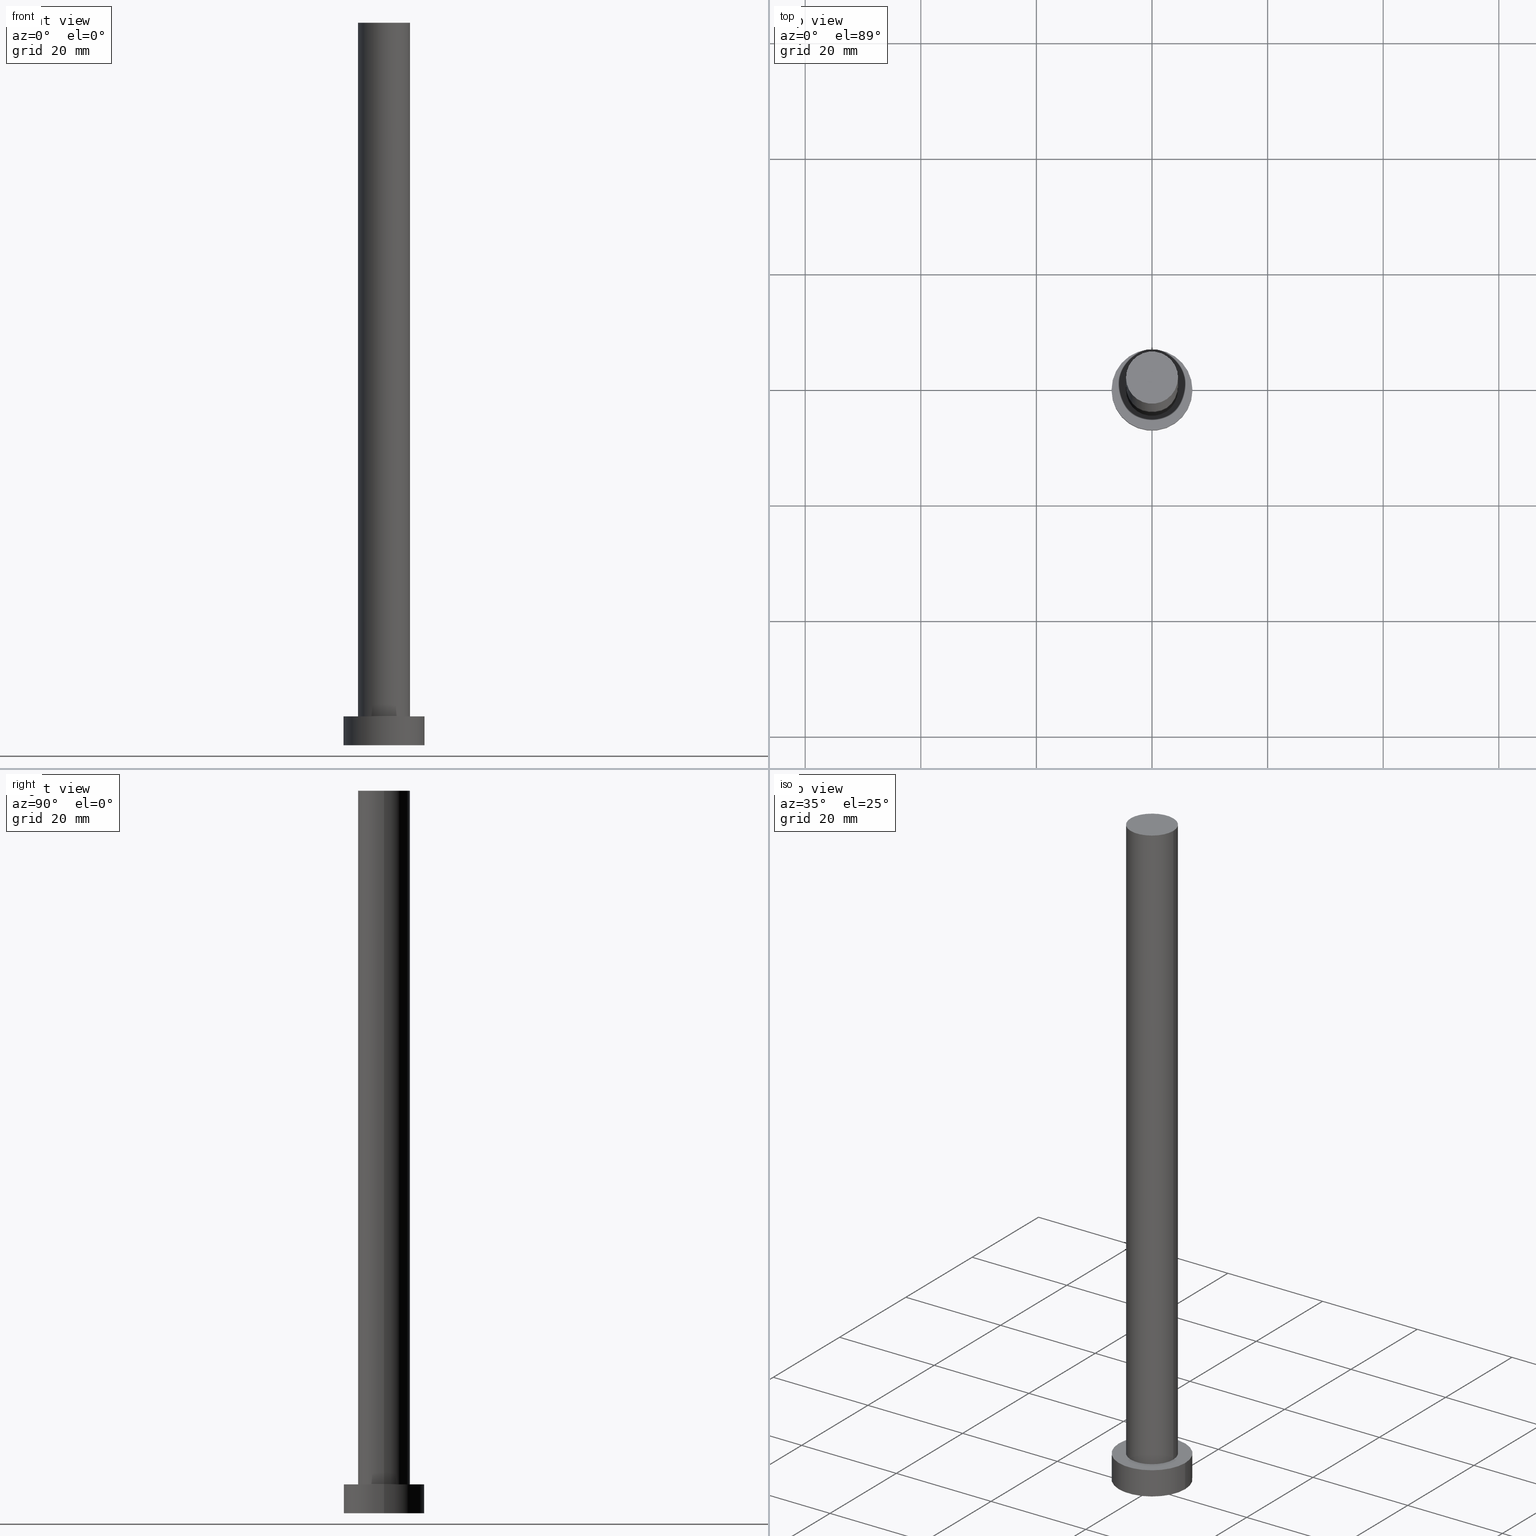
[diagram: canonical four-view strip — front | top / right | iso, engineering-drawing reading convention]
A machine part, canonical four-view strip (front | top / right | iso — engineering-drawing reading convention). The complete STEP part file that produces these views, byte-faithful:
ISO-10303-21;
HEADER;
FILE_DESCRIPTION (( 'STEP AP203' ),
    '1' );
FILE_NAME ('ce7a.STEP',
    '2023-02-13T10:51:18',
    ( '' ),
    ( '' ),
    'SwSTEP 2.0',
    'SolidWorks 2019',
    '' );
FILE_SCHEMA (( 'CONFIG_CONTROL_DESIGN' ));
ENDSEC;

DATA;
#1 = AXIS2_PLACEMENT_3D ( 'NONE', #152, #16, #151 ) ;
#2 = DIRECTION ( 'NONE',  ( -1.000000000000000000, 0.000000000000000000, 0.000000000000000000 ) ) ;
#3 = AXIS2_PLACEMENT_3D ( 'NONE', #54, #109, #191 ) ;
#4 = DIRECTION ( 'NONE',  ( 0.000000000000000000, 0.000000000000000000, 1.000000000000000000 ) ) ;
#5 = DIRECTION ( 'NONE',  ( -0.000000000000000000, -0.000000000000000000, -1.000000000000000000 ) ) ;
#6 = EDGE_CURVE ( 'NONE', #207, #101, #126, .T. ) ;
#7 = CARTESIAN_POINT ( 'NONE',  ( -4.500000000000000888, 0.000000000000000000, 125.0000000000000000 ) ) ;
#8 = AXIS2_PLACEMENT_3D ( 'NONE', #167, #253, #170 ) ;
#9 = PERSON_AND_ORGANIZATION_ROLE ( 'design_owner' ) ;
#10 = PERSON_AND_ORGANIZATION_ROLE ( 'design_supplier' ) ;
#11 = AXIS2_PLACEMENT_3D ( 'NONE', #107, #135, #28 ) ;
#12 = ORIENTED_EDGE ( 'NONE', *, *, #113, .F. ) ;
#13 = COORDINATED_UNIVERSAL_TIME_OFFSET ( 1, 0, .AHEAD. ) ;
#14 = FACE_OUTER_BOUND ( 'NONE', #29, .T. ) ;
#15 = CARTESIAN_POINT ( 'NONE',  ( -4.500000000000000888, 0.000000000000000000, 125.0000000000000000 ) ) ;
#16 = DIRECTION ( 'NONE',  ( 0.000000000000000000, 0.000000000000000000, 1.000000000000000000 ) ) ;
#17 = APPROVAL_PERSON_ORGANIZATION ( #244, #147, #136 ) ;
#18 = DIRECTION ( 'NONE',  ( 1.000000000000000000, 0.000000000000000000, -0.000000000000000000 ) ) ;
#19 = CIRCLE ( 'NONE', #98, 7.000000000000000000 ) ;
#20 = CARTESIAN_POINT ( 'NONE',  ( 4.500000000000000888, 5.510910596163089556E-16, 5.000000000000000000 ) ) ;
#21 = DIRECTION ( 'NONE',  ( 0.000000000000000000, 0.000000000000000000, 1.000000000000000000 ) ) ;
#22 = ORIENTED_EDGE ( 'NONE', *, *, #91, .T. ) ;
#23 = LOCAL_TIME ( 11, 51, 18.00000000000000000, #123 ) ;
#24 = DIRECTION ( 'NONE',  ( 0.000000000000000000, 0.000000000000000000, 1.000000000000000000 ) ) ;
#25 = PERSON_AND_ORGANIZATION ( #128, #75 ) ;
#26 = CC_DESIGN_PERSON_AND_ORGANIZATION_ASSIGNMENT ( #25, #102, ( #246 ) ) ;
#27 = VERTEX_POINT ( 'NONE', #212 ) ;
#28 = DIRECTION ( 'NONE',  ( 1.000000000000000000, 0.000000000000000000, 0.000000000000000000 ) ) ;
#29 = EDGE_LOOP ( 'NONE', ( #145, #86, #103, #99 ) ) ;
#30 = CC_DESIGN_PERSON_AND_ORGANIZATION_ASSIGNMENT ( #183, #10, ( #246 ) ) ;
#31 = AXIS2_PLACEMENT_3D ( 'NONE', #223, #220, #40 ) ;
#32 = CIRCLE ( 'NONE', #56, 4.500000000000000888 ) ;
#33 = ORIENTED_EDGE ( 'NONE', *, *, #91, .F. ) ;
#34 = PERSON_AND_ORGANIZATION ( #128, #75 ) ;
#35 = AXIS2_PLACEMENT_3D ( 'NONE', #41, #238, #116 ) ;
#36 = CARTESIAN_POINT ( 'NONE',  ( -4.500000000000000888, 0.000000000000000000, 5.000000000000000000 ) ) ;
#37 = PRODUCT_DEFINITION_SHAPE ( 'NONE', 'NONE',  #153 ) ;
#38 = APPROVAL ( #215, 'NEUR�EN�' ) ;
#39 = CYLINDRICAL_SURFACE ( 'NONE', #140, 4.500000000000000888 ) ;
#40 = DIRECTION ( 'NONE',  ( -1.000000000000000000, 0.000000000000000000, 0.000000000000000000 ) ) ;
#41 = CARTESIAN_POINT ( 'NONE',  ( 0.000000000000000000, 0.000000000000000000, 5.000000000000000000 ) ) ;
#42 = CARTESIAN_POINT ( 'NONE',  ( 0.000000000000000000, 0.000000000000000000, 125.0000000000000000 ) ) ;
#43 = DATE_AND_TIME ( #230, #23 ) ;
#44 = CALENDAR_DATE ( 2023, 13, 2 ) ;
#45 =( GEOMETRIC_REPRESENTATION_CONTEXT ( 3 ) GLOBAL_UNCERTAINTY_ASSIGNED_CONTEXT ( ( #237 ) ) GLOBAL_UNIT_ASSIGNED_CONTEXT ( ( #105, #184, #206 ) ) REPRESENTATION_CONTEXT ( 'NONE', 'WORKASPACE' ) );
#46 = CIRCLE ( 'NONE', #138, 4.500000000000000888 ) ;
#47 = DIRECTION ( 'NONE',  ( 0.000000000000000000, 0.000000000000000000, 1.000000000000000000 ) ) ;
#48 = VERTEX_POINT ( 'NONE', #217 ) ;
#49 = APPLICATION_PROTOCOL_DEFINITION ( 'international standard', 'config_control_design', 1994, #175 ) ;
#50 = ORIENTED_EDGE ( 'NONE', *, *, #221, .T. ) ;
#51 = COORDINATED_UNIVERSAL_TIME_OFFSET ( 1, 0, .AHEAD. ) ;
#52 = EDGE_LOOP ( 'NONE', ( #245, #185 ) ) ;
#53 = APPROVAL_DATE_TIME ( #234, #38 ) ;
#54 = CARTESIAN_POINT ( 'NONE',  ( 0.000000000000000000, 0.000000000000000000, 0.000000000000000000 ) ) ;
#55 = EDGE_CURVE ( 'NONE', #101, #207, #198, .T. ) ;
#56 = AXIS2_PLACEMENT_3D ( 'NONE', #84, #81, #227 ) ;
#57 = CARTESIAN_POINT ( 'NONE',  ( 0.000000000000000000, 0.000000000000000000, 0.000000000000000000 ) ) ;
#58 = CARTESIAN_POINT ( 'NONE',  ( 0.000000000000000000, 0.000000000000000000, 5.000000000000000000 ) ) ;
#59 = CARTESIAN_POINT ( 'NONE',  ( 7.000000000000000000, 8.572527594031473190E-16, 0.000000000000000000 ) ) ;
#60 = APPROVAL ( #80, 'NEUR�EN�' ) ;
#61 = FACE_OUTER_BOUND ( 'NONE', #143, .T. ) ;
#62 = DIRECTION ( 'NONE',  ( -0.000000000000000000, -0.000000000000000000, -1.000000000000000000 ) ) ;
#63 = PERSON_AND_ORGANIZATION ( #128, #75 ) ;
#64 = DATE_TIME_ROLE ( 'creation_date' ) ;
#65 = CC_DESIGN_PERSON_AND_ORGANIZATION_ASSIGNMENT ( #63, #9, ( #155 ) ) ;
#66 = MECHANICAL_CONTEXT ( 'NONE', #90, 'mechanical' ) ;
#67 = LOCAL_TIME ( 11, 51, 18.00000000000000000, #13 ) ;
#68 = ORIENTED_EDGE ( 'NONE', *, *, #96, .T. ) ;
#69 = CC_DESIGN_APPROVAL ( #38, ( #174 ) ) ;
#70 = APPROVAL_PERSON_ORGANIZATION ( #161, #60, #121 ) ;
#71 = SECURITY_CLASSIFICATION_LEVEL ( 'unclassified' ) ;
#72 = ADVANCED_FACE ( 'NONE', ( #14 ), #252, .T. ) ;
#73 = PERSON_AND_ORGANIZATION_ROLE ( 'classification_officer' ) ;
#74 = CARTESIAN_POINT ( 'NONE',  ( 0.000000000000000000, 0.000000000000000000, 5.000000000000000000 ) ) ;
#75 = ORGANIZATION ( 'NEUR�EN�', 'NEUR�EN�', '' ) ;
#76 = LINE ( 'NONE', #133, #165 ) ;
#77 = DIRECTION ( 'NONE',  ( 1.000000000000000000, 0.000000000000000000, 0.000000000000000000 ) ) ;
#78 = FACE_OUTER_BOUND ( 'NONE', #52, .T. ) ;
#79 = DATE_AND_TIME ( #210, #176 ) ;
#80 = APPROVAL_STATUS ( 'not_yet_approved' ) ;
#81 = DIRECTION ( 'NONE',  ( 0.000000000000000000, 0.000000000000000000, 1.000000000000000000 ) ) ;
#82 = CIRCLE ( 'NONE', #197, 4.500000000000000888 ) ;
#83 = AXIS2_PLACEMENT_3D ( 'NONE', #240, #178, #115 ) ;
#84 = CARTESIAN_POINT ( 'NONE',  ( 0.000000000000000000, 0.000000000000000000, 5.000000000000000000 ) ) ;
#85 = VERTEX_POINT ( 'NONE', #36 ) ;
#86 = ORIENTED_EDGE ( 'NONE', *, *, #235, .F. ) ;
#87 = LOCAL_TIME ( 11, 51, 18.00000000000000000, #224 ) ;
#88 = DATE_TIME_ROLE ( 'classification_date' ) ;
#89 = VERTEX_POINT ( 'NONE', #93 ) ;
#90 = APPLICATION_CONTEXT ( 'configuration controlled 3d designs of mechanical parts and assemblies' ) ;
#91 = EDGE_CURVE ( 'NONE', #168, #85, #222, .T. ) ;
#92 = CARTESIAN_POINT ( 'NONE',  ( -7.000000000000000000, 0.000000000000000000, 5.000000000000000000 ) ) ;
#93 = CARTESIAN_POINT ( 'NONE',  ( 4.500000000000000888, 5.510910596163089556E-16, 125.0000000000000000 ) ) ;
#94 = ADVANCED_FACE ( 'NONE', ( #61 ), #95, .T. ) ;
#95 = CYLINDRICAL_SURFACE ( 'NONE', #110, 7.000000000000000000 ) ;
#96 = EDGE_CURVE ( 'NONE', #166, #85, #164, .T. ) ;
#97 = DIRECTION ( 'NONE',  ( 1.000000000000000000, 0.000000000000000000, 0.000000000000000000 ) ) ;
#98 = AXIS2_PLACEMENT_3D ( 'NONE', #74, #21, #77 ) ;
#99 = ORIENTED_EDGE ( 'NONE', *, *, #6, .T. ) ;
#100 = PERSON_AND_ORGANIZATION_ROLE ( 'creator' ) ;
#101 = VERTEX_POINT ( 'NONE', #59 ) ;
#102 = PERSON_AND_ORGANIZATION_ROLE ( 'creator' ) ;
#103 = ORIENTED_EDGE ( 'NONE', *, *, #169, .T. ) ;
#104 = EDGE_CURVE ( 'NONE', #89, #168, #82, .T. ) ;
#105 =( LENGTH_UNIT ( ) NAMED_UNIT ( * ) SI_UNIT ( .MILLI., .METRE. ) );
#106 = ORIENTED_EDGE ( 'NONE', *, *, #55, .F. ) ;
#107 = CARTESIAN_POINT ( 'NONE',  ( 0.000000000000000000, 0.000000000000000000, 5.000000000000000000 ) ) ;
#108 = ORIENTED_EDGE ( 'NONE', *, *, #96, .F. ) ;
#109 = DIRECTION ( 'NONE',  ( 0.000000000000000000, 0.000000000000000000, 1.000000000000000000 ) ) ;
#110 = AXIS2_PLACEMENT_3D ( 'NONE', #194, #62, #2 ) ;
#111 = CC_DESIGN_APPROVAL ( #60, ( #153 ) ) ;
#112 = ORIENTED_EDGE ( 'NONE', *, *, #228, .F. ) ;
#113 = EDGE_CURVE ( 'NONE', #48, #27, #19, .T. ) ;
#114 = CIRCLE ( 'NONE', #11, 7.000000000000000000 ) ;
#115 = DIRECTION ( 'NONE',  ( 1.000000000000000000, 0.000000000000000000, 0.000000000000000000 ) ) ;
#116 = DIRECTION ( 'NONE',  ( -1.000000000000000000, 0.000000000000000000, 0.000000000000000000 ) ) ;
#117 = CC_DESIGN_PERSON_AND_ORGANIZATION_ASSIGNMENT ( #187, #100, ( #153 ) ) ;
#118 = PLANE ( 'NONE',  #129 ) ;
#119 = FACE_OUTER_BOUND ( 'NONE', #190, .T. ) ;
#120 = CARTESIAN_POINT ( 'NONE',  ( 0.000000000000000000, 0.000000000000000000, 125.0000000000000000 ) ) ;
#121 = APPROVAL_ROLE ( '' ) ;
#122 = ORIENTED_EDGE ( 'NONE', *, *, #55, .T. ) ;
#123 = COORDINATED_UNIVERSAL_TIME_OFFSET ( 1, 0, .AHEAD. ) ;
#124 = EDGE_LOOP ( 'NONE', ( #182, #108 ) ) ;
#125 = CARTESIAN_POINT ( 'NONE',  ( 4.500000000000000888, 5.510910596163089556E-16, 125.0000000000000000 ) ) ;
#126 = CIRCLE ( 'NONE', #8, 7.000000000000000000 ) ;
#127 = MANIFOLD_SOLID_BREP ( 'P�idat vysunut�m3', #250 ) ;
#128 = PERSON ( 'NEUR�EN�', 'NEUR�EN�', 'NEUR�EN�', ('NEUR�EN�'), ('NEUR�EN�'), ('NEUR�EN�') ) ;
#129 = AXIS2_PLACEMENT_3D ( 'NONE', #58, #130, #18 ) ;
#130 = DIRECTION ( 'NONE',  ( 0.000000000000000000, 0.000000000000000000, 1.000000000000000000 ) ) ;
#131 = DIRECTION ( 'NONE',  ( -0.000000000000000000, -0.000000000000000000, -1.000000000000000000 ) ) ;
#132 = CARTESIAN_POINT ( 'NONE',  ( 0.000000000000000000, 0.000000000000000000, 125.0000000000000000 ) ) ;
#133 = CARTESIAN_POINT ( 'NONE',  ( 7.000000000000000000, 8.572527594031473190E-16, 5.000000000000000000 ) ) ;
#134 = ADVANCED_FACE ( 'NONE', ( #119 ), #39, .T. ) ;
#135 = DIRECTION ( 'NONE',  ( 0.000000000000000000, 0.000000000000000000, 1.000000000000000000 ) ) ;
#136 = APPROVAL_ROLE ( '' ) ;
#137 = ORIENTED_EDGE ( 'NONE', *, *, #169, .F. ) ;
#138 = AXIS2_PLACEMENT_3D ( 'NONE', #132, #4, #193 ) ;
#139 = DATE_AND_TIME ( #44, #87 ) ;
#140 = AXIS2_PLACEMENT_3D ( 'NONE', #120, #131, #200 ) ;
#141 = EDGE_CURVE ( 'NONE', #168, #89, #46, .T. ) ;
#142 = ORIENTED_EDGE ( 'NONE', *, *, #228, .T. ) ;
#143 = EDGE_LOOP ( 'NONE', ( #12, #251, #122, #137 ) ) ;
#144 = CALENDAR_DATE ( 2023, 13, 2 ) ;
#145 = ORIENTED_EDGE ( 'NONE', *, *, #163, .F. ) ;
#146 = PERSON_AND_ORGANIZATION ( #128, #75 ) ;
#147 = APPROVAL ( #159, 'NEUR�EN�' ) ;
#148 = COORDINATED_UNIVERSAL_TIME_OFFSET ( 1, 0, .AHEAD. ) ;
#149 = VECTOR ( 'NONE', #208, 1000.000000000000000 ) ;
#150 = ADVANCED_BREP_SHAPE_REPRESENTATION ( 'ce7a', ( #127, #154 ), #45 ) ;
#151 = DIRECTION ( 'NONE',  ( 1.000000000000000000, 0.000000000000000000, -0.000000000000000000 ) ) ;
#152 = CARTESIAN_POINT ( 'NONE',  ( 0.000000000000000000, 0.000000000000000000, 125.0000000000000000 ) ) ;
#153 = PRODUCT_DEFINITION ( 'NEZN�M�', '', #246, #254 ) ;
#154 = AXIS2_PLACEMENT_3D ( 'NONE', #201, #47, #97 ) ;
#155 = PRODUCT ( 'ce7a', 'ce7a', '', ( #66 ) ) ;
#156 = CYLINDRICAL_SURFACE ( 'NONE', #31, 4.500000000000000888 ) ;
#157 = PLANE ( 'NONE',  #1 ) ;
#158 = DIRECTION ( 'NONE',  ( -0.000000000000000000, -0.000000000000000000, -1.000000000000000000 ) ) ;
#159 = APPROVAL_STATUS ( 'not_yet_approved' ) ;
#160 = APPROVAL_DATE_TIME ( #43, #60 ) ;
#161 = PERSON_AND_ORGANIZATION ( #128, #75 ) ;
#162 = ORIENTED_EDGE ( 'NONE', *, *, #6, .F. ) ;
#163 = EDGE_CURVE ( 'NONE', #48, #101, #76, .T. ) ;
#164 = CIRCLE ( 'NONE', #83, 4.500000000000000888 ) ;
#165 = VECTOR ( 'NONE', #158, 1000.000000000000000 ) ;
#166 = VERTEX_POINT ( 'NONE', #20 ) ;
#167 = CARTESIAN_POINT ( 'NONE',  ( 0.000000000000000000, 0.000000000000000000, 0.000000000000000000 ) ) ;
#168 = VERTEX_POINT ( 'NONE', #15 ) ;
#169 = EDGE_CURVE ( 'NONE', #27, #207, #255, .T. ) ;
#170 = DIRECTION ( 'NONE',  ( 1.000000000000000000, 0.000000000000000000, 0.000000000000000000 ) ) ;
#171 = ADVANCED_FACE ( 'NONE', ( #172 ), #157, .T. ) ;
#172 = FACE_OUTER_BOUND ( 'NONE', #231, .T. ) ;
#173 = DIRECTION ( 'NONE',  ( 1.000000000000000000, 0.000000000000000000, 0.000000000000000000 ) ) ;
#174 = SECURITY_CLASSIFICATION ( '', '', #71 ) ;
#175 = APPLICATION_CONTEXT ( 'configuration controlled 3d designs of mechanical parts and assemblies' ) ;
#176 = LOCAL_TIME ( 11, 51, 18.00000000000000000, #51 ) ;
#177 = DIRECTION ( 'NONE',  ( -0.000000000000000000, -0.000000000000000000, -1.000000000000000000 ) ) ;
#178 = DIRECTION ( 'NONE',  ( 0.000000000000000000, 0.000000000000000000, 1.000000000000000000 ) ) ;
#179 = VECTOR ( 'NONE', #177, 1000.000000000000000 ) ;
#180 = EDGE_LOOP ( 'NONE', ( #233, #142, #68, #33 ) ) ;
#181 = ADVANCED_FACE ( 'NONE', ( #195 ), #156, .T. ) ;
#182 = ORIENTED_EDGE ( 'NONE', *, *, #221, .F. ) ;
#183 = PERSON_AND_ORGANIZATION ( #128, #75 ) ;
#184 =( NAMED_UNIT ( * ) PLANE_ANGLE_UNIT ( ) SI_UNIT ( $, .RADIAN. ) );
#185 = ORIENTED_EDGE ( 'NONE', *, *, #113, .T. ) ;
#186 = CC_DESIGN_DATE_AND_TIME_ASSIGNMENT ( #79, #64, ( #153 ) ) ;
#187 = PERSON_AND_ORGANIZATION ( #128, #75 ) ;
#188 = ORIENTED_EDGE ( 'NONE', *, *, #104, .T. ) ;
#189 = DATE_AND_TIME ( #249, #67 ) ;
#190 = EDGE_LOOP ( 'NONE', ( #112, #229, #22, #50 ) ) ;
#191 = DIRECTION ( 'NONE',  ( 1.000000000000000000, 0.000000000000000000, 0.000000000000000000 ) ) ;
#192 = CC_DESIGN_DATE_AND_TIME_ASSIGNMENT ( #189, #88, ( #174 ) ) ;
#193 = DIRECTION ( 'NONE',  ( 1.000000000000000000, 0.000000000000000000, 0.000000000000000000 ) ) ;
#194 = CARTESIAN_POINT ( 'NONE',  ( 0.000000000000000000, 0.000000000000000000, 5.000000000000000000 ) ) ;
#195 = FACE_OUTER_BOUND ( 'NONE', #180, .T. ) ;
#196 = ADVANCED_FACE ( 'NONE', ( #199, #78 ), #118, .T. ) ;
#197 = AXIS2_PLACEMENT_3D ( 'NONE', #42, #219, #173 ) ;
#198 = CIRCLE ( 'NONE', #3, 7.000000000000000000 ) ;
#199 = FACE_BOUND ( 'NONE', #124, .T. ) ;
#200 = DIRECTION ( 'NONE',  ( -1.000000000000000000, 0.000000000000000000, 0.000000000000000000 ) ) ;
#201 = CARTESIAN_POINT ( 'NONE',  ( 0.000000000000000000, 0.000000000000000000, 0.000000000000000000 ) ) ;
#202 = ORIENTED_EDGE ( 'NONE', *, *, #141, .T. ) ;
#203 = PRODUCT_RELATED_PRODUCT_CATEGORY ( 'detail', '', ( #155 ) ) ;
#204 = AXIS2_PLACEMENT_3D ( 'NONE', #57, #24, #247 ) ;
#205 = APPLICATION_PROTOCOL_DEFINITION ( 'international standard', 'config_control_design', 1994, #90 ) ;
#206 =( NAMED_UNIT ( * ) SI_UNIT ( $, .STERADIAN. ) SOLID_ANGLE_UNIT ( ) );
#207 = VERTEX_POINT ( 'NONE', #236 ) ;
#208 = DIRECTION ( 'NONE',  ( -0.000000000000000000, -0.000000000000000000, -1.000000000000000000 ) ) ;
#209 = EDGE_LOOP ( 'NONE', ( #162, #106 ) ) ;
#210 = CALENDAR_DATE ( 2023, 13, 2 ) ;
#211 = APPROVAL_ROLE ( '' ) ;
#212 = CARTESIAN_POINT ( 'NONE',  ( -7.000000000000000000, 0.000000000000000000, 5.000000000000000000 ) ) ;
#213 = SHAPE_DEFINITION_REPRESENTATION ( #37, #150 ) ;
#214 = APPROVAL_PERSON_ORGANIZATION ( #146, #38, #211 ) ;
#215 = APPROVAL_STATUS ( 'not_yet_approved' ) ;
#216 = ADVANCED_FACE ( 'NONE', ( #242 ), #243, .F. ) ;
#217 = CARTESIAN_POINT ( 'NONE',  ( 7.000000000000000000, 8.572527594031473190E-16, 5.000000000000000000 ) ) ;
#218 = CC_DESIGN_SECURITY_CLASSIFICATION ( #174, ( #246 ) ) ;
#219 = DIRECTION ( 'NONE',  ( 0.000000000000000000, 0.000000000000000000, 1.000000000000000000 ) ) ;
#220 = DIRECTION ( 'NONE',  ( -0.000000000000000000, -0.000000000000000000, -1.000000000000000000 ) ) ;
#221 = EDGE_CURVE ( 'NONE', #85, #166, #32, .T. ) ;
#222 = LINE ( 'NONE', #7, #179 ) ;
#223 = CARTESIAN_POINT ( 'NONE',  ( 0.000000000000000000, 0.000000000000000000, 125.0000000000000000 ) ) ;
#224 = COORDINATED_UNIVERSAL_TIME_OFFSET ( 1, 0, .AHEAD. ) ;
#225 = VECTOR ( 'NONE', #5, 1000.000000000000000 ) ;
#226 = APPROVAL_DATE_TIME ( #139, #147 ) ;
#227 = DIRECTION ( 'NONE',  ( 1.000000000000000000, 0.000000000000000000, 0.000000000000000000 ) ) ;
#228 = EDGE_CURVE ( 'NONE', #89, #166, #248, .T. ) ;
#229 = ORIENTED_EDGE ( 'NONE', *, *, #141, .F. ) ;
#230 = CALENDAR_DATE ( 2023, 13, 2 ) ;
#231 = EDGE_LOOP ( 'NONE', ( #202, #188 ) ) ;
#232 = LOCAL_TIME ( 11, 51, 18.00000000000000000, #148 ) ;
#233 = ORIENTED_EDGE ( 'NONE', *, *, #104, .F. ) ;
#234 = DATE_AND_TIME ( #144, #232 ) ;
#235 = EDGE_CURVE ( 'NONE', #27, #48, #114, .T. ) ;
#236 = CARTESIAN_POINT ( 'NONE',  ( -7.000000000000000000, 0.000000000000000000, 0.000000000000000000 ) ) ;
#237 = UNCERTAINTY_MEASURE_WITH_UNIT (LENGTH_MEASURE( 1.000000000000000082E-05 ), #105, 'distance_accuracy_value', 'NONE');
#238 = DIRECTION ( 'NONE',  ( -0.000000000000000000, -0.000000000000000000, -1.000000000000000000 ) ) ;
#239 = CC_DESIGN_APPROVAL ( #147, ( #246 ) ) ;
#240 = CARTESIAN_POINT ( 'NONE',  ( 0.000000000000000000, 0.000000000000000000, 5.000000000000000000 ) ) ;
#241 = CC_DESIGN_PERSON_AND_ORGANIZATION_ASSIGNMENT ( #34, #73, ( #174 ) ) ;
#242 = FACE_OUTER_BOUND ( 'NONE', #209, .T. ) ;
#243 = PLANE ( 'NONE',  #204 ) ;
#244 = PERSON_AND_ORGANIZATION ( #128, #75 ) ;
#245 = ORIENTED_EDGE ( 'NONE', *, *, #235, .T. ) ;
#246 = PRODUCT_DEFINITION_FORMATION_WITH_SPECIFIED_SOURCE ( 'LIBOVOLN�', '', #155, .NOT_KNOWN. ) ;
#247 = DIRECTION ( 'NONE',  ( 1.000000000000000000, 0.000000000000000000, -0.000000000000000000 ) ) ;
#248 = LINE ( 'NONE', #125, #149 ) ;
#249 = CALENDAR_DATE ( 2023, 13, 2 ) ;
#250 = CLOSED_SHELL ( 'NONE', ( #181, #94, #72, #196, #216, #134, #171 ) ) ;
#251 = ORIENTED_EDGE ( 'NONE', *, *, #163, .T. ) ;
#252 = CYLINDRICAL_SURFACE ( 'NONE', #35, 7.000000000000000000 ) ;
#253 = DIRECTION ( 'NONE',  ( 0.000000000000000000, 0.000000000000000000, 1.000000000000000000 ) ) ;
#254 = DESIGN_CONTEXT ( 'detailed design', #175, 'design' ) ;
#255 = LINE ( 'NONE', #92, #225 ) ;
ENDSEC;
END-ISO-10303-21;
